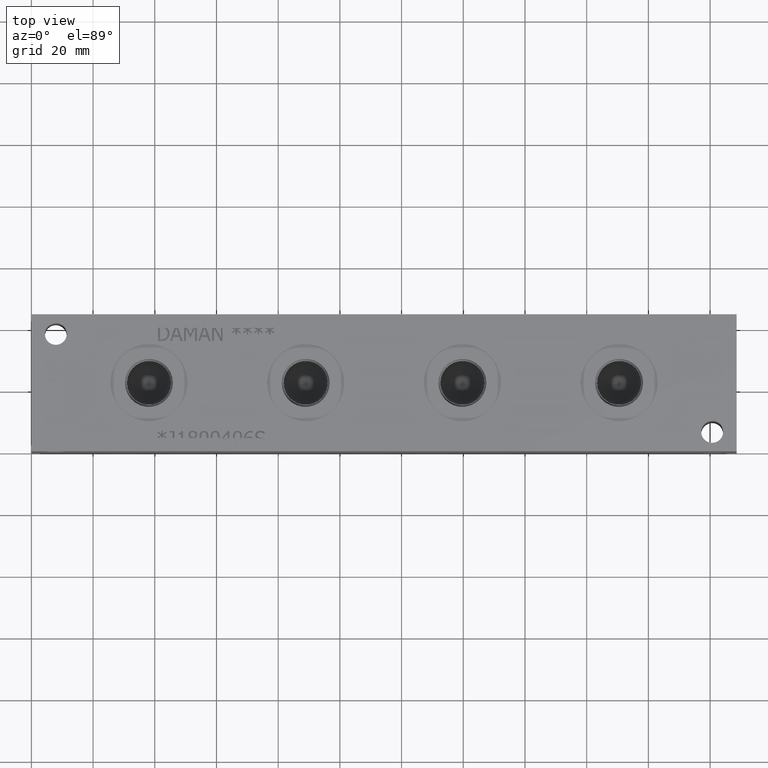
[diagram: clean part render]
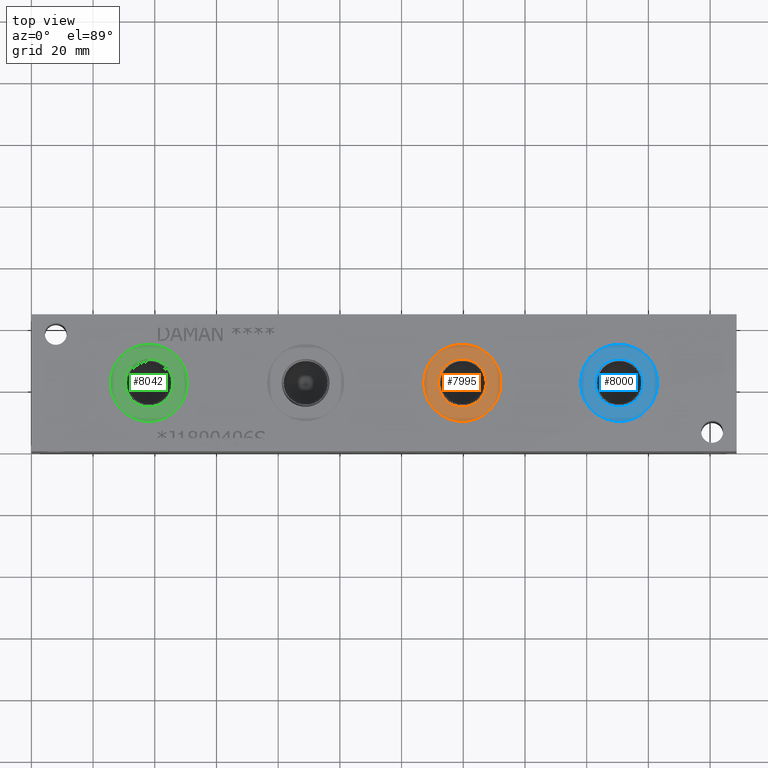
[diagram: same view with three faces highlighted in distinct colors, each labeled with its STEP entity id]
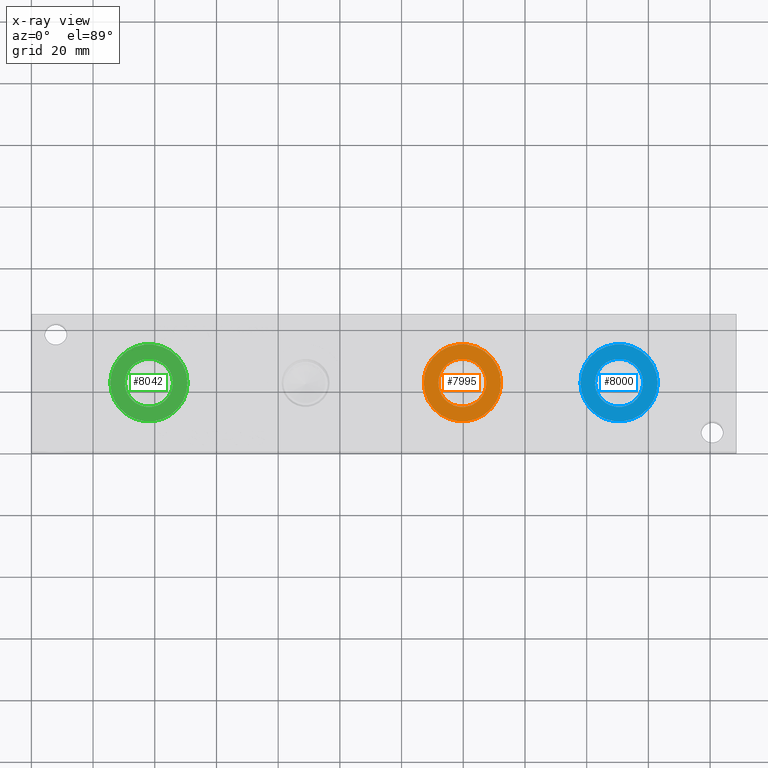
[diagram: x-ray of the same camera — body ghosted, the three highlighted faces saturated]
A machine part, top view with three faces highlighted in distinct colors.
The next image is the same camera in x-ray (body ghosted, the three faces saturated) — at least one of them is partly hidden behind the body in this view.
Their STEP definitions:

[orange] entity #7995 — the highlighted planar face has unit normal (0, 0, -1).
#190=CIRCLE('',#8408,12.5095);
#191=CIRCLE('',#8409,12.5095);
#192=CIRCLE('',#8411,7.79780000000001);
#193=CIRCLE('',#8412,7.79780000000001);
#309=FACE_BOUND('',#1375,.T.);
#544=PLANE('',#8410);
#916=FACE_OUTER_BOUND('',#1374,.T.);
#1374=EDGE_LOOP('',(#6936,#6937));
#1375=EDGE_LOOP('',(#6938,#6939));
#3793=VERTEX_POINT('',#13608);
#3794=VERTEX_POINT('',#13610);
#3795=VERTEX_POINT('',#13614);
#3796=VERTEX_POINT('',#13615);
#4862=EDGE_CURVE('',#3793,#3794,#190,.T.);
#4863=EDGE_CURVE('',#3794,#3793,#191,.T.);
#4864=EDGE_CURVE('',#3795,#3796,#192,.T.);
#4865=EDGE_CURVE('',#3796,#3795,#193,.T.);
#6936=ORIENTED_EDGE('',*,*,#4863,.F.);
#6937=ORIENTED_EDGE('',*,*,#4862,.F.);
#6938=ORIENTED_EDGE('',*,*,#4864,.T.);
#6939=ORIENTED_EDGE('',*,*,#4865,.T.);
#7995=ADVANCED_FACE('',(#916,#309),#544,.F.);
#8408=AXIS2_PLACEMENT_3D('',#13611,#9920,#9921);
#8409=AXIS2_PLACEMENT_3D('',#13612,#9922,#9923);
#8410=AXIS2_PLACEMENT_3D('',#13613,#9924,#9925);
#8411=AXIS2_PLACEMENT_3D('',#13616,#9926,#9927);
#8412=AXIS2_PLACEMENT_3D('',#13617,#9928,#9929);
#9920=DIRECTION('center_axis',(0.,0.,-1.));
#9921=DIRECTION('ref_axis',(1.,0.,0.));
#9922=DIRECTION('center_axis',(0.,0.,-1.));
#9923=DIRECTION('ref_axis',(1.,0.,0.));
#9924=DIRECTION('center_axis',(0.,0.,-1.));
#9925=DIRECTION('ref_axis',(-1.,0.,0.));
#9926=DIRECTION('center_axis',(0.,0.,-1.));
#9927=DIRECTION('ref_axis',(1.,0.,0.));
#9928=DIRECTION('center_axis',(0.,0.,-1.));
#9929=DIRECTION('ref_axis',(1.,0.,0.));
#13608=CARTESIAN_POINT('',(127.1905,22.225,43.6626));
#13610=CARTESIAN_POINT('',(152.2095,22.225,43.6626));
#13611=CARTESIAN_POINT('Origin',(139.7,22.225,43.6626));
#13612=CARTESIAN_POINT('Origin',(139.7,22.225,43.6626));
#13613=CARTESIAN_POINT('Origin',(147.4978,22.225,43.6626));
#13614=CARTESIAN_POINT('',(147.4978,22.225,43.6626));
#13615=CARTESIAN_POINT('',(131.9022,22.225,43.6626));
#13616=CARTESIAN_POINT('Origin',(139.7,22.225,43.6626));
#13617=CARTESIAN_POINT('Origin',(139.7,22.225,43.6626));

[blue] entity #8000 — the highlighted planar face has unit normal (0, 0, -1).
#199=CIRCLE('',#8422,12.5095);
#200=CIRCLE('',#8423,12.5095);
#201=CIRCLE('',#8425,7.79779999999999);
#202=CIRCLE('',#8426,7.79779999999999);
#310=FACE_BOUND('',#1381,.T.);
#545=PLANE('',#8424);
#921=FACE_OUTER_BOUND('',#1380,.T.);
#1380=EDGE_LOOP('',(#6963,#6964));
#1381=EDGE_LOOP('',(#6965,#6966));
#3802=VERTEX_POINT('',#13635);
#3803=VERTEX_POINT('',#13637);
#3804=VERTEX_POINT('',#13641);
#3805=VERTEX_POINT('',#13642);
#4875=EDGE_CURVE('',#3802,#3803,#199,.T.);
#4876=EDGE_CURVE('',#3803,#3802,#200,.T.);
#4877=EDGE_CURVE('',#3804,#3805,#201,.T.);
#4878=EDGE_CURVE('',#3805,#3804,#202,.T.);
#6963=ORIENTED_EDGE('',*,*,#4876,.F.);
#6964=ORIENTED_EDGE('',*,*,#4875,.F.);
#6965=ORIENTED_EDGE('',*,*,#4877,.T.);
#6966=ORIENTED_EDGE('',*,*,#4878,.T.);
#8000=ADVANCED_FACE('',(#921,#310),#545,.F.);
#8422=AXIS2_PLACEMENT_3D('',#13638,#9952,#9953);
#8423=AXIS2_PLACEMENT_3D('',#13639,#9954,#9955);
#8424=AXIS2_PLACEMENT_3D('',#13640,#9956,#9957);
#8425=AXIS2_PLACEMENT_3D('',#13643,#9958,#9959);
#8426=AXIS2_PLACEMENT_3D('',#13644,#9960,#9961);
#9952=DIRECTION('center_axis',(0.,0.,-1.));
#9953=DIRECTION('ref_axis',(1.,0.,0.));
#9954=DIRECTION('center_axis',(0.,0.,-1.));
#9955=DIRECTION('ref_axis',(1.,0.,0.));
#9956=DIRECTION('center_axis',(0.,0.,-1.));
#9957=DIRECTION('ref_axis',(-1.,0.,0.));
#9958=DIRECTION('center_axis',(0.,0.,-1.));
#9959=DIRECTION('ref_axis',(1.,0.,0.));
#9960=DIRECTION('center_axis',(0.,0.,-1.));
#9961=DIRECTION('ref_axis',(1.,0.,0.));
#13635=CARTESIAN_POINT('',(177.9905,22.225,43.6626));
#13637=CARTESIAN_POINT('',(203.0095,22.225,43.6626));
#13638=CARTESIAN_POINT('Origin',(190.5,22.225,43.6626));
#13639=CARTESIAN_POINT('Origin',(190.5,22.225,43.6626));
#13640=CARTESIAN_POINT('Origin',(198.2978,22.225,43.6626));
#13641=CARTESIAN_POINT('',(198.2978,22.225,43.6626));
#13642=CARTESIAN_POINT('',(182.7022,22.225,43.6626));
#13643=CARTESIAN_POINT('Origin',(190.5,22.225,43.6626));
#13644=CARTESIAN_POINT('Origin',(190.5,22.225,43.6626));

[green] entity #8042 — the highlighted planar face has unit normal (0, 0, -1).
#258=CIRCLE('',#8531,12.5095);
#259=CIRCLE('',#8532,12.5095);
#260=CIRCLE('',#8534,7.7978);
#261=CIRCLE('',#8535,7.7978);
#316=FACE_BOUND('',#1429,.T.);
#551=PLANE('',#8533);
#963=FACE_OUTER_BOUND('',#1428,.T.);
#1428=EDGE_LOOP('',(#7169,#7170));
#1429=EDGE_LOOP('',(#7171,#7172));
#3869=VERTEX_POINT('',#13847);
#3870=VERTEX_POINT('',#13849);
#3871=VERTEX_POINT('',#13853);
#3872=VERTEX_POINT('',#13854);
#4978=EDGE_CURVE('',#3869,#3870,#258,.T.);
#4979=EDGE_CURVE('',#3870,#3869,#259,.T.);
#4980=EDGE_CURVE('',#3871,#3872,#260,.T.);
#4981=EDGE_CURVE('',#3872,#3871,#261,.T.);
#7169=ORIENTED_EDGE('',*,*,#4979,.F.);
#7170=ORIENTED_EDGE('',*,*,#4978,.F.);
#7171=ORIENTED_EDGE('',*,*,#4980,.T.);
#7172=ORIENTED_EDGE('',*,*,#4981,.T.);
#8042=ADVANCED_FACE('',(#963,#316),#551,.F.);
#8531=AXIS2_PLACEMENT_3D('',#13850,#10206,#10207);
#8532=AXIS2_PLACEMENT_3D('',#13851,#10208,#10209);
#8533=AXIS2_PLACEMENT_3D('',#13852,#10210,#10211);
#8534=AXIS2_PLACEMENT_3D('',#13855,#10212,#10213);
#8535=AXIS2_PLACEMENT_3D('',#13856,#10214,#10215);
#10206=DIRECTION('center_axis',(0.,0.,-1.));
#10207=DIRECTION('ref_axis',(1.,0.,0.));
#10208=DIRECTION('center_axis',(0.,0.,-1.));
#10209=DIRECTION('ref_axis',(1.,0.,0.));
#10210=DIRECTION('center_axis',(0.,0.,-1.));
#10211=DIRECTION('ref_axis',(-1.,0.,0.));
#10212=DIRECTION('center_axis',(0.,0.,-1.));
#10213=DIRECTION('ref_axis',(1.,0.,0.));
#10214=DIRECTION('center_axis',(0.,0.,-1.));
#10215=DIRECTION('ref_axis',(1.,0.,0.));
#13847=CARTESIAN_POINT('',(25.5905,22.225,43.6626));
#13849=CARTESIAN_POINT('',(50.6095,22.225,43.6626));
#13850=CARTESIAN_POINT('Origin',(38.1,22.225,43.6626));
#13851=CARTESIAN_POINT('Origin',(38.1,22.225,43.6626));
#13852=CARTESIAN_POINT('Origin',(45.8978,22.225,43.6626));
#13853=CARTESIAN_POINT('',(45.8978,22.225,43.6626));
#13854=CARTESIAN_POINT('',(30.3022,22.225,43.6626));
#13855=CARTESIAN_POINT('Origin',(38.1,22.225,43.6626));
#13856=CARTESIAN_POINT('Origin',(38.1,22.225,43.6626));